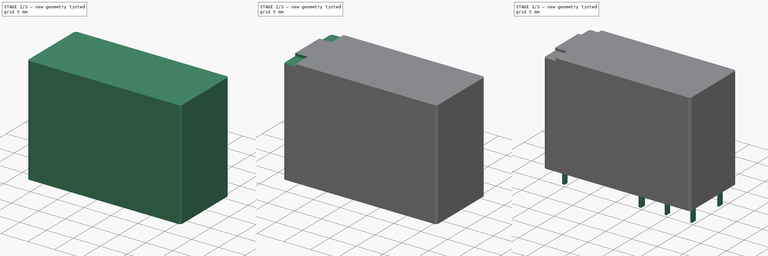
[diagram: build sequence overview — one tinted view per stage of 3, left to right]
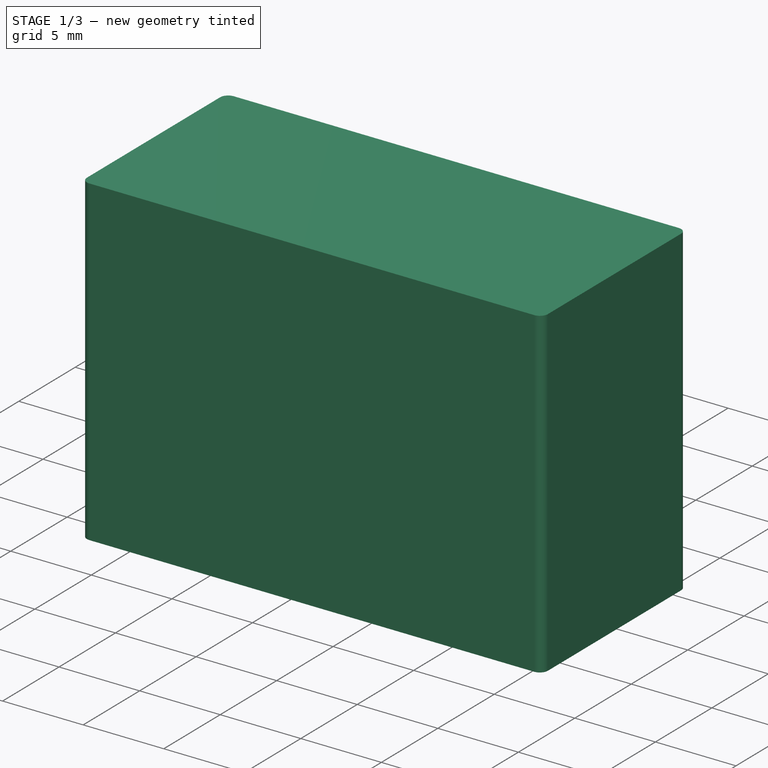
[diagram: stage 1 of 3 — iso view after this stage's code; geometry added in this stage tinted green]
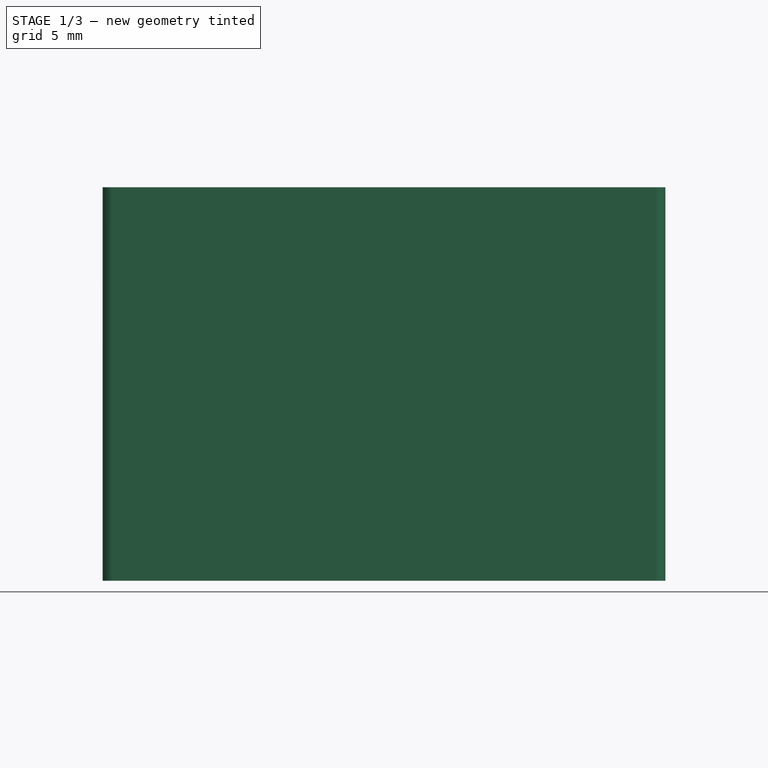
[diagram: stage 1 of 3 — front view after this stage's code; geometry added in this stage tinted green]
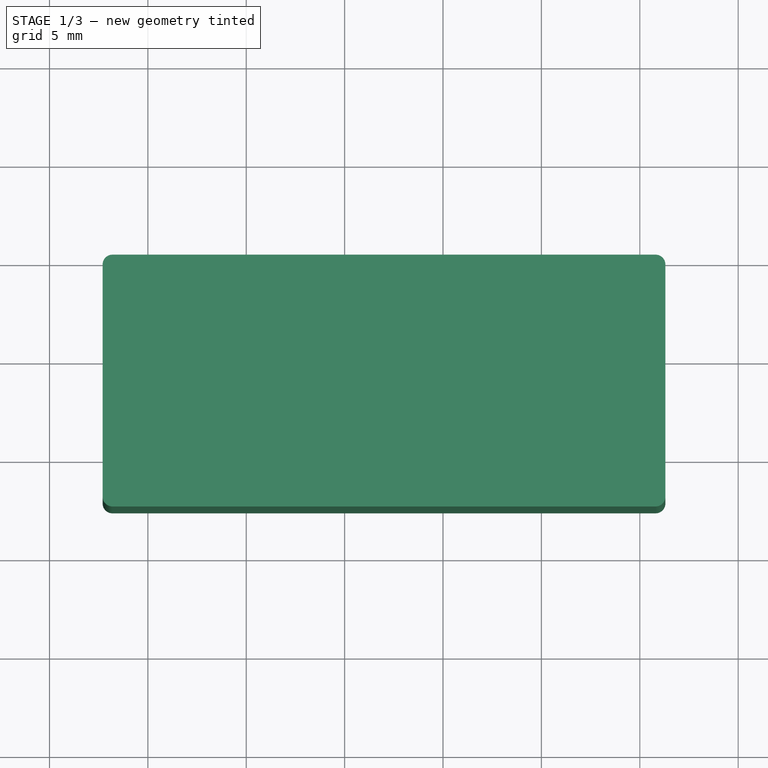
[diagram: stage 1 of 3 — top view after this stage's code; geometry added in this stage tinted green]
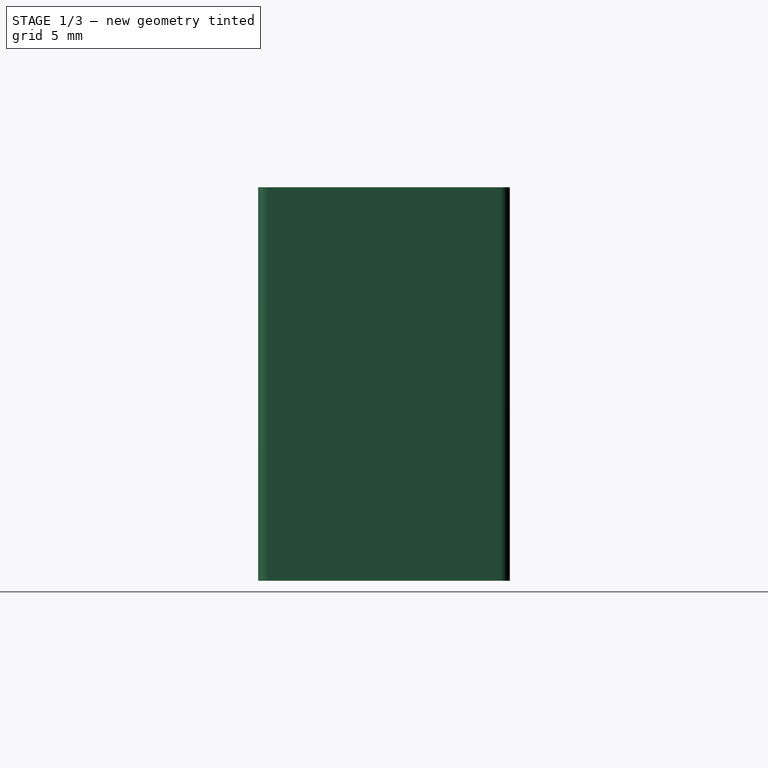
[diagram: stage 1 of 3 — right view after this stage's code; geometry added in this stage tinted green]
FCSTD DOCUMENT  (FreeCAD 0.16R6712 (Git))
Label: Relay_DPDT_Panasonic_JW2
License: All rights reserved
LicenseURL: http://en.wikipedia.org/wiki/All_rights_reserved
objects: Sketcher::SketchObject×3, Part::Feature×3, PartDesign::Pad×2, App::DocumentObjectGroup×1, PartDesign::Fillet×1, PartDesign::Pocket×1, Part::MultiFuse×1
note: 14 computed .brp shape members not serialized (recipe doc carries the construction recipe); baked Part::Feature solids carry a one-line shape summary decoded from their .brp

FEATURE [Part::Feature] FusionAxisZ1  label="Z"
  shape: bbox 0.8 x 0.8 x 14 mm, 8 faces (baked)
FEATURE [Part::Feature] FusionAxisY1  label="Y"
  Placement = pos=(0,0,0.05) rot=(-1,0,0;1.5708rad)
  shape: bbox 0.8 x 14 x 0.8 mm, 8 faces (baked)
FEATURE [Part::Feature] FusionAxisX1  label="X"
  Placement = pos=(0,-0.05,0) rot=(0,1,0;1.5708rad)
  shape: bbox 14 x 0.8 x 0.8 mm, 8 faces (baked)
FEATURE [App::DocumentObjectGroup] axis
  Group = -> [FusionAxisZ1,FusionAxisY1,FusionAxisX1]
FEATURE [Sketcher::SketchObject] Sketch001
  expr: Constraints[11] = 28.6 - 25 - 1.3
  expr: Constraints[8] = (12.7 - 7.5) / 2
  sketch-geometry (4):
    g0: LineSegment StartX=-2.3 StartY=-2.6 StartZ=0 EndX=26.3 EndY=-2.6 EndZ=0
    g1: LineSegment StartX=26.3 StartY=-2.6 StartZ=0 EndX=26.3 EndY=10.2 EndZ=0
    g2: LineSegment StartX=26.3 StartY=10.2 StartZ=0 EndX=-2.3 EndY=10.2 EndZ=0
    g3: LineSegment StartX=-2.3 StartY=10.2 StartZ=0 EndX=-2.3 EndY=-2.6 EndZ=0
  constraints (12):
    c: Coincident(g0,g1)
    c: Coincident(g1,g2)
    c: Coincident(g2,g3)
    c: Coincident(g3,g0)
    c: Horizontal(g0)
    c: Horizontal(g2)
    c: Vertical(g1)
    c: Vertical(g3)
    c: DistanceY(g0,g-1) = 2.6
    c: DistanceY(g3,g3) = 12.8
    c: DistanceX(g2,g2) = 28.6
    c: DistanceX(g0,g-1) = 2.3
FEATURE [PartDesign::Pad] Pad001
  Length = 20
  Length2 = 100
  Sketch = -> Sketch001
  Type = 0
FEATURE [PartDesign::Fillet] Fillet
  Base = -> Pad001 [Edge5,Edge2,Edge1,Edge8]
  Radius = 0.5
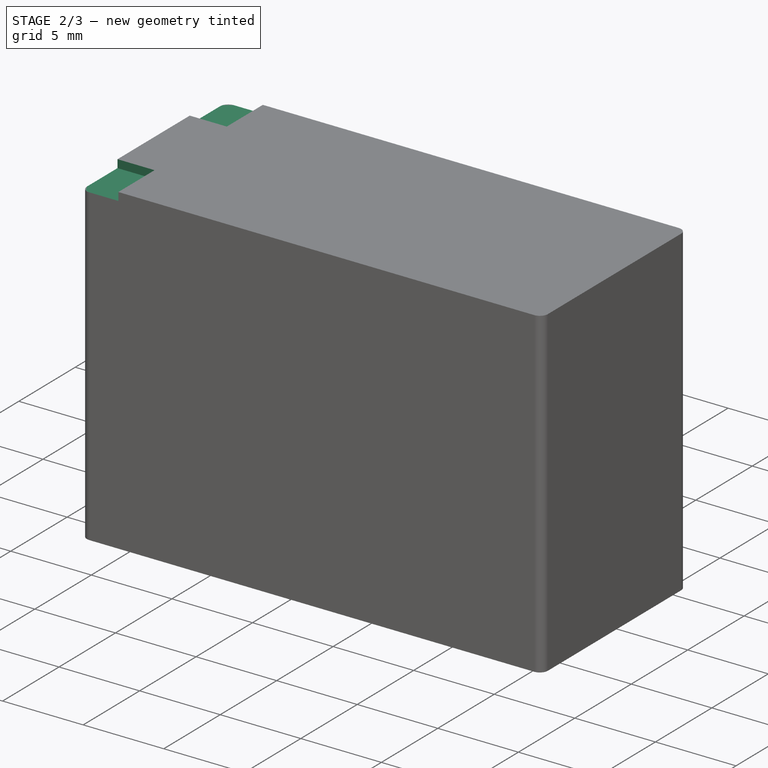
[diagram: stage 2 of 3 — iso view after this stage's code; geometry added in this stage tinted green]
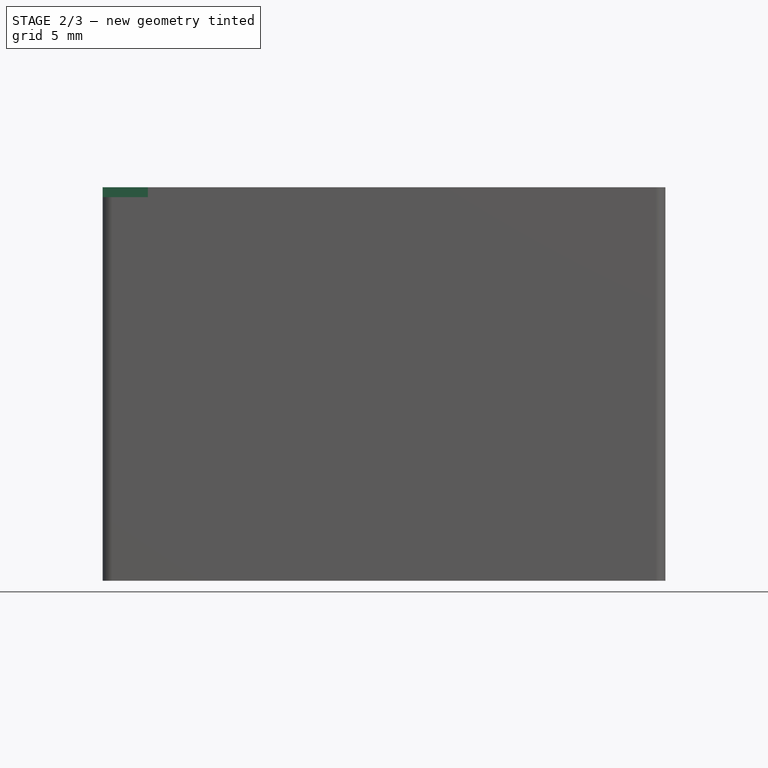
[diagram: stage 2 of 3 — front view after this stage's code; geometry added in this stage tinted green]
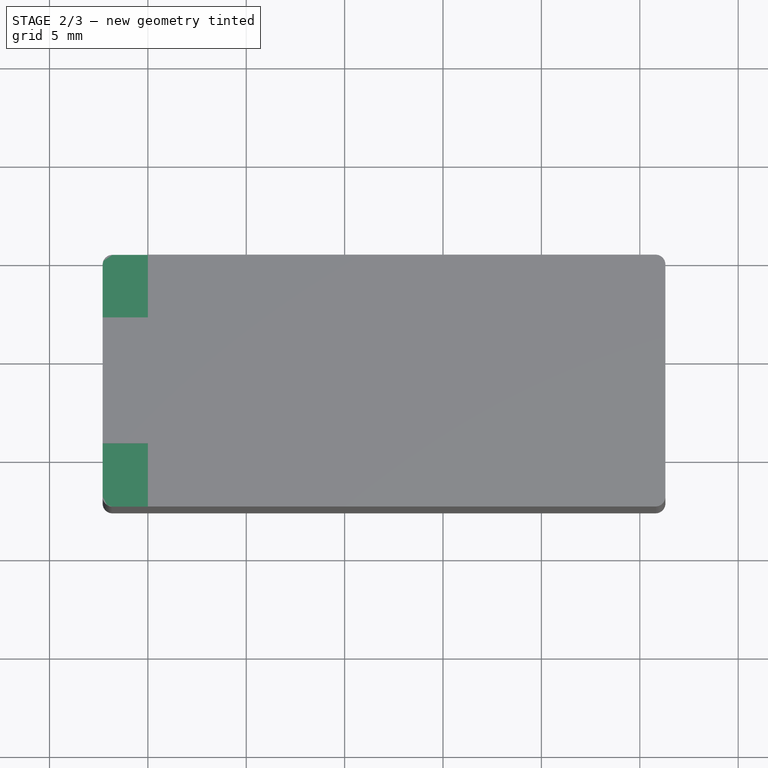
[diagram: stage 2 of 3 — top view after this stage's code; geometry added in this stage tinted green]
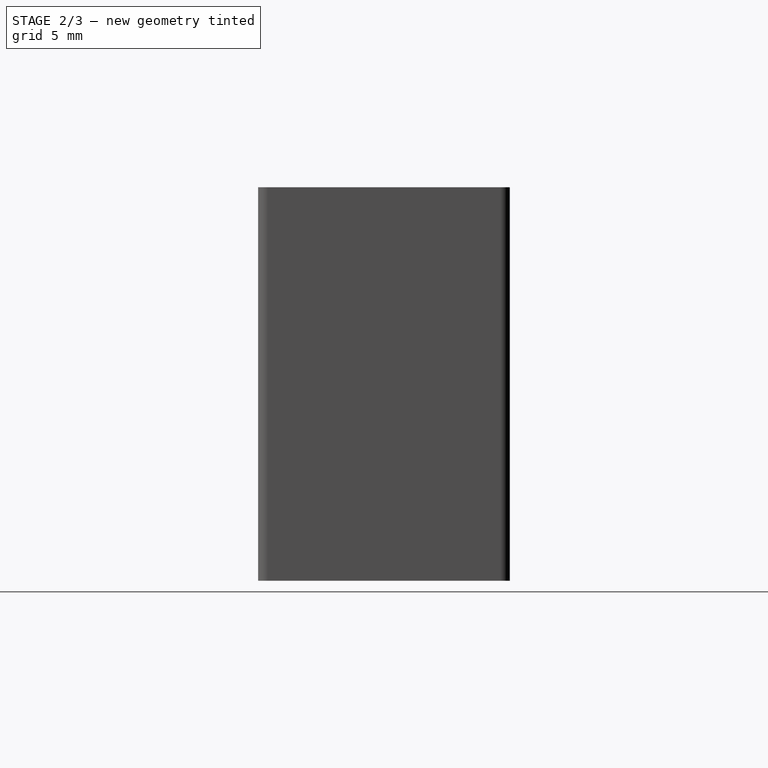
[diagram: stage 2 of 3 — right view after this stage's code; geometry added in this stage tinted green]
FEATURE [Sketcher::SketchObject] Sketch002
  ExternalGeometry = -> [Fillet]
  Placement = pos=(0,0,20) rot=(0,0,1;0rad)
  Support = -> Fillet [Face5]
  expr: Constraints[21] = 12.8 / 2
  sketch-geometry (8):
    g0: LineSegment StartX=-2.4 StartY=10.22 StartZ=0 EndX=0 EndY=10.22 EndZ=0
    g1: LineSegment StartX=0 StartY=10.22 StartZ=0 EndX=0 EndY=7.01 EndZ=0
    g2: LineSegment StartX=0 StartY=7.01 StartZ=0 EndX=-2.4 EndY=7.01 EndZ=0
    g3: LineSegment StartX=-2.4 StartY=7.01 StartZ=0 EndX=-2.4 EndY=10.22 EndZ=0
    g4: LineSegment StartX=-2.4 StartY=-2.6 StartZ=0 EndX=0 EndY=-2.6 EndZ=0
    g5: LineSegment StartX=0 StartY=-2.6 StartZ=0 EndX=0 EndY=0.61 EndZ=0
    g6: LineSegment StartX=0 StartY=0.61 StartZ=0 EndX=-2.4 EndY=0.61 EndZ=0
    g7: LineSegment StartX=-2.4 StartY=0.61 StartZ=0 EndX=-2.4 EndY=-2.6 EndZ=0
  constraints (24):
    c: Coincident(g0,g1)
    c: Coincident(g1,g2)
    c: Coincident(g2,g3)
    c: Coincident(g3,g0)
    c: Horizontal(g0)
    c: Horizontal(g2)
    c: Vertical(g1)
    c: Vertical(g3)
    c: PointOnObject(g1,g-2)
    c: Coincident(g4,g5)
    c: Coincident(g5,g6)
    c: Coincident(g6,g7)
    c: Coincident(g7,g4)
    c: Horizontal(g4)
    c: Horizontal(g6)
    c: Vertical(g5)
    c: Vertical(g7)
    c: PointOnObject(g5,g-2)
    c: Equal(g7,g3)
    c: Equal(g0,g6)
    c: DistanceY(g4,g0) = 12.82
    c: DistanceY(g6,g2) = 6.4
    c: DistanceX(g4,g4) = 2.4
    c: PointOnObject(g4,g-3)
FEATURE [PartDesign::Pocket] Pocket
  Length = 0.5
  Sketch = -> Sketch002
  Type = 0
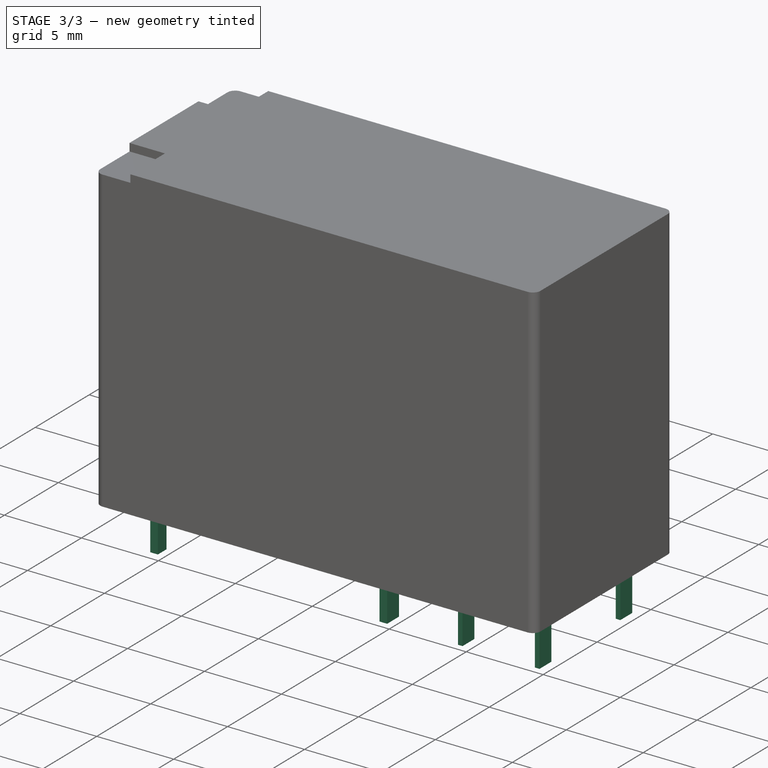
[diagram: stage 3 of 3 — iso view after this stage's code; geometry added in this stage tinted green]
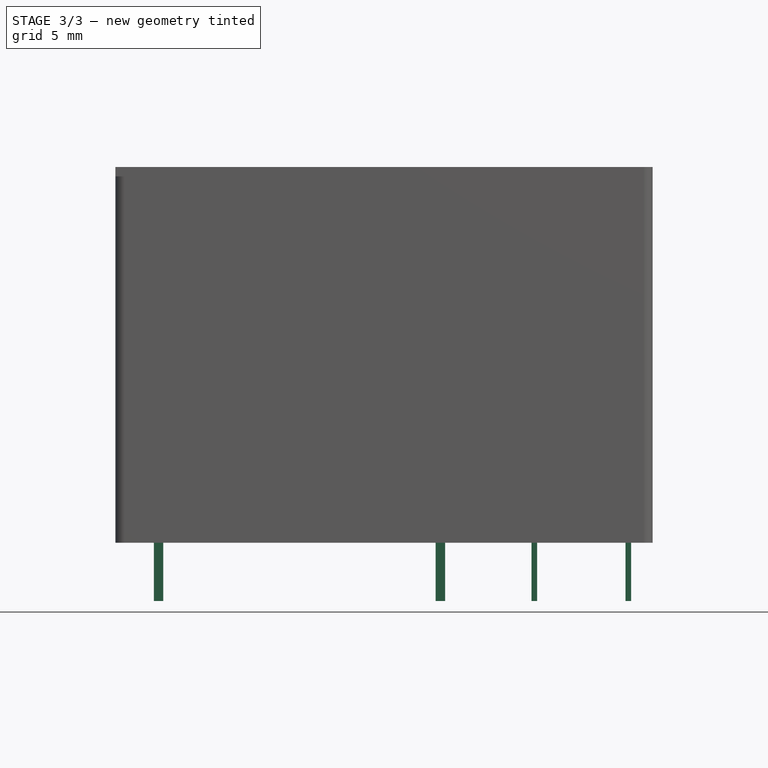
[diagram: stage 3 of 3 — front view after this stage's code; geometry added in this stage tinted green]
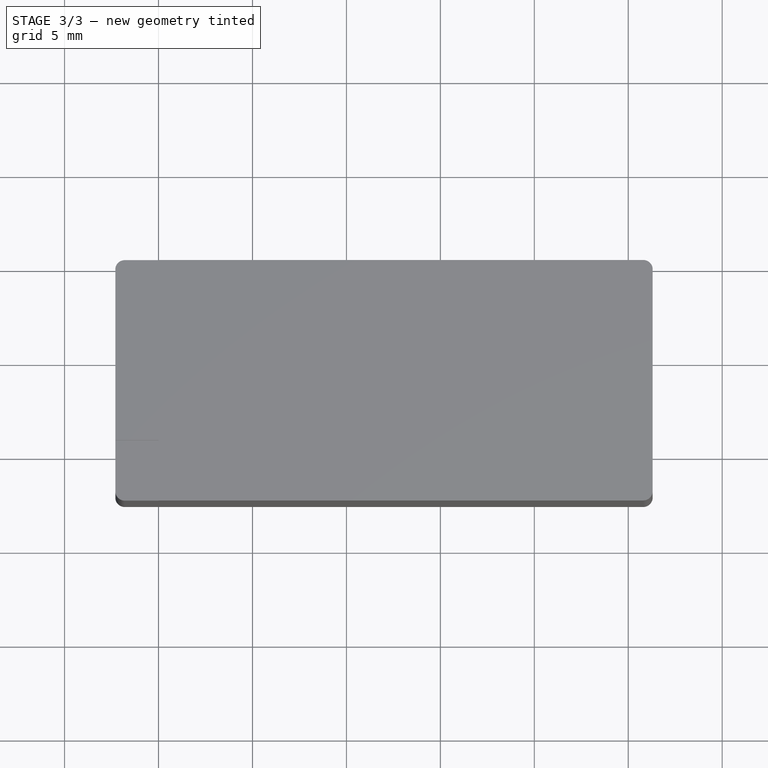
[diagram: stage 3 of 3 — top view after this stage's code; geometry added in this stage tinted green]
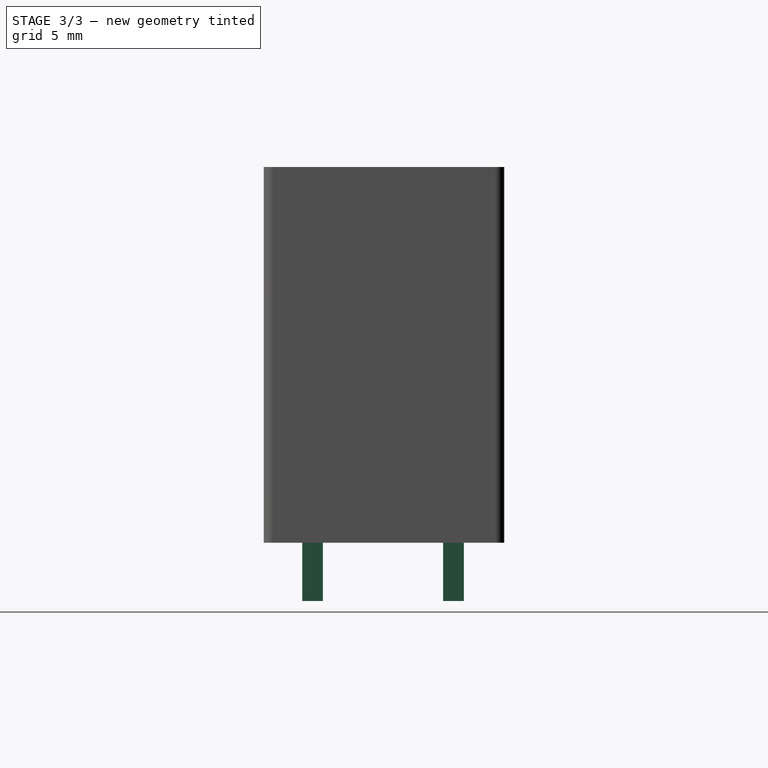
[diagram: stage 3 of 3 — right view after this stage's code; geometry added in this stage tinted green]
FEATURE [Sketcher::SketchObject] Sketch
  Placement = pos=(0,0,0.5) rot=(0,0,1;1.5708rad)
  sketch-geometry (42):
    g0: LineSegment StartX=-0.4 StartY=0.25 StartZ=0 EndX=0.4 EndY=0.25 EndZ=0
    g1: LineSegment StartX=0.4 StartY=0.25 StartZ=0 EndX=0.4 EndY=-0.25 EndZ=0
    g2: LineSegment StartX=0.4 StartY=-0.25 StartZ=0 EndX=-0.4 EndY=-0.25 EndZ=0
    g3: LineSegment StartX=-0.4 StartY=-0.25 StartZ=0 EndX=-0.4 EndY=0.25 EndZ=0
    g4: GeomPoint [constr] X=0 Y=0.25 Z=0
    g5: GeomPoint [constr] X=0.4 Y=0 Z=0
    g6: LineSegment StartX=7.1 StartY=0.25 StartZ=0 EndX=7.9 EndY=0.25 EndZ=0
    g7: LineSegment StartX=7.9 StartY=0.25 StartZ=0 EndX=7.9 EndY=-0.25 EndZ=0
    g8: LineSegment StartX=7.9 StartY=-0.25 StartZ=0 EndX=7.1 EndY=-0.25 EndZ=0
    g9: LineSegment StartX=7.1 StartY=-0.25 StartZ=0 EndX=7.1 EndY=0.25 EndZ=0
    g10: LineSegment StartX=-0.55 StartY=-14.75 StartZ=0 EndX=0.55 EndY=-14.75 EndZ=0
    g11: LineSegment StartX=0.55 StartY=-14.75 StartZ=0 EndX=0.55 EndY=-15.25 EndZ=0
    g12: LineSegment StartX=0.55 StartY=-15.25 StartZ=0 EndX=-0.55 EndY=-15.25 EndZ=0
    g13: LineSegment StartX=-0.55 StartY=-15.25 StartZ=0 EndX=-0.55 EndY=-14.75 EndZ=0
    g14: LineSegment StartX=-0.55 StartY=-19.85 StartZ=0 EndX=0.55 EndY=-19.85 EndZ=0
    g15: LineSegment StartX=0.55 StartY=-19.85 StartZ=0 EndX=0.55 EndY=-20.15 EndZ=0
    g16: LineSegment StartX=0.55 StartY=-20.15 StartZ=0 EndX=-0.55 EndY=-20.15 EndZ=0
    g17: LineSegment StartX=-0.55 StartY=-20.15 StartZ=0 EndX=-0.55 EndY=-19.85 EndZ=0
    g18: LineSegment [constr] StartX=-0.4 StartY=0 StartZ=0 EndX=7.1 EndY=0 EndZ=0
    g19: GeomPoint [constr] X=-0.55 Y=-15 Z=0
    g20: LineSegment StartX=6.95 StartY=-19.85 StartZ=0 EndX=8.05 EndY=-19.85 EndZ=0
    g21: LineSegment StartX=8.05 StartY=-19.85 StartZ=0 EndX=8.05 EndY=-20.15 EndZ=0
    g22: LineSegment StartX=8.05 StartY=-20.15 StartZ=0 EndX=6.95 EndY=-20.15 EndZ=0
    g23: LineSegment StartX=6.95 StartY=-20.15 StartZ=0 EndX=6.95 EndY=-19.85 EndZ=0
    g24: LineSegment [constr] StartX=-0.55 StartY=-15 StartZ=0 EndX=-0.55 EndY=-20 EndZ=0
    g25: LineSegment [constr] StartX=-0.55 StartY=-20 StartZ=0 EndX=6.95 EndY=-20 EndZ=0
    g26: LineSegment StartX=6.95 StartY=-14.75 StartZ=0 EndX=8.05 EndY=-14.75 EndZ=0
    g27: LineSegment StartX=8.05 StartY=-14.75 StartZ=0 EndX=8.05 EndY=-15.25 EndZ=0
    g28: LineSegment StartX=8.05 StartY=-15.25 StartZ=0 EndX=6.95 EndY=-15.25 EndZ=0
    g29: LineSegment StartX=6.95 StartY=-15.25 StartZ=0 EndX=6.95 EndY=-14.75 EndZ=0
    g30: LineSegment [constr] StartX=-0.55 StartY=-15 StartZ=0 EndX=6.95 EndY=-15 EndZ=0
    g31: LineSegment StartX=-0.55 StartY=-24.85 StartZ=0 EndX=0.55 EndY=-24.85 EndZ=0
    g32: LineSegment StartX=0.55 StartY=-24.85 StartZ=0 EndX=0.55 EndY=-25.15 EndZ=0
    g33: LineSegment StartX=0.55 StartY=-25.15 StartZ=0 EndX=-0.55 EndY=-25.15 EndZ=0
    g34: LineSegment StartX=-0.55 StartY=-25.15 StartZ=0 EndX=-0.55 EndY=-24.85 EndZ=0
    g35: LineSegment StartX=6.95 StartY=-24.85 StartZ=0 EndX=8.05 EndY=-24.85 EndZ=0
    g36: LineSegment StartX=8.05 StartY=-24.85 StartZ=0 EndX=8.05 EndY=-25.15 EndZ=0
    g37: LineSegment StartX=8.05 StartY=-25.15 StartZ=0 EndX=6.95 EndY=-25.15 EndZ=0
    g38: LineSegment StartX=6.95 StartY=-25.15 StartZ=0 EndX=6.95 EndY=-24.85 EndZ=0
    g39: LineSegment [constr] StartX=-0.55 StartY=-25 StartZ=0 EndX=6.95 EndY=-25 EndZ=0
    g40: LineSegment [constr] StartX=-0.55 StartY=-25 StartZ=0 EndX=-0.55 EndY=-20 EndZ=0
    g41: LineSegment [constr] StartX=0 StartY=0.25 StartZ=0 EndX=0 EndY=-14.75 EndZ=0
  constraints (117):
    c: Coincident(g0,g1)
    c: Coincident(g1,g2)
    c: Coincident(g2,g3)
    c: Coincident(g3,g0)
    c: Horizontal(g0)
    c: Horizontal(g2)
    c: Vertical(g1)
    c: Vertical(g3)
    c: PointOnObject(g4,g0)
    c: PointOnObject(g5,g-1)
    c: Symmetric(g1,g1,g5)
    c: Symmetric(g0,g0,g4)
    c: PointOnObject(g4,g-2)
    c: DistanceY(g3,g3) = 0.5
    c: DistanceX(g0,g0) = 0.8
    c: Coincident(g6,g7)
    c: Coincident(g7,g8)
    c: Coincident(g8,g9)
    c: Coincident(g9,g6)
    c: Horizontal(g6)
    c: Horizontal(g8)
    c: Vertical(g7)
    c: Vertical(g9)
    c: Coincident(g10,g11)
    c: Coincident(g11,g12)
    c: Coincident(g12,g13)
    c: Coincident(g13,g10)
    c: Horizontal(g10)
    c: Horizontal(g12)
    c: Vertical(g11)
    c: Vertical(g13)
    c: Coincident(g14,g15)
    c: Coincident(g15,g16)
    c: Coincident(g16,g17)
    c: Coincident(g17,g14)
    c: Horizontal(g14)
    c: Horizontal(g16)
    c: Vertical(g15)
    c: Vertical(g17)
    c: PointOnObject(g18,g3)
    c: Horizontal(g18)
    c: Symmetric(g9,g9,g18)
    c: DistanceX(g18,g18) = 7.5
    c: Equal(g6,g0)
    c: Symmetric(g13,g13,g19)
    c: Coincident(g20,g21)
    c: Coincident(g21,g22)
    c: Coincident(g22,g23)
    c: Coincident(g23,g20)
    c: Horizontal(g20)
    c: Horizontal(g22)
    c: Vertical(g21)
    c: Vertical(g23)
    c: DistanceY(g11,g11) = 0.5
    c: Vertical(g24)
    c: Symmetric(g17,g17,g24)
    c: DistanceY(g24,g24) = 5
    c: DistanceY(g19,g18) = 15
    c: Horizontal(g25)
    c: Coincident(g24,g25)
    c: DistanceX(g25,g25) = 7.5
    c: Symmetric(g23,g23,g25)
    c: Equal(g7,g1)
    c: Coincident(g26,g27)
    c: Coincident(g27,g28)
    c: Coincident(g28,g29)
    c: Coincident(g29,g26)
    c: Horizontal(g26)
    c: Horizontal(g28)
    c: Vertical(g27)
    c: Vertical(g29)
    c: Horizontal(g30)
    c: Equal(g25,g30) = 7.62
    c: Symmetric(g29,g29,g30)
    c: Coincident(g31,g32)
    c: Coincident(g32,g33)
    c: Coincident(g33,g34)
    c: Coincident(g34,g31)
    c: Horizontal(g31)
    c: Horizontal(g33)
    c: Vertical(g32)
    c: Vertical(g34)
    c: Coincident(g35,g36)
    c: Coincident(g36,g37)
    c: Coincident(g37,g38)
    c: Coincident(g38,g35)
    c: Horizontal(g35)
    c: Horizontal(g37)
    c: Vertical(g36)
    c: Vertical(g38)
    c: Horizontal(g39)
    c: Equal(g25,g39) = 7.62
    c: Symmetric(g38,g38,g39)
    c: Coincident(g40,g39)
    c: Coincident(g40,g24)
    c: Vertical(g40)
    c: DistanceY(g40,g40) = 5
    c: PointOnObject(g39,g34)
    c: Symmetric(g34,g34,g39)
    c: Equal(g15,g21)
    c: Equal(g21,g36)
    c: Equal(g36,g32)
    c: DistanceY(g23,g23) = 0.3
    c: Equal(g11,g27)
    c: Equal(g12,g28)
    c: Equal(g28,g16)
    c: Equal(g16,g22)
    c: Equal(g22,g37)
    c: Equal(g37,g33)
    c: DistanceX(g33,g33) = 1.1
    c: Coincident(g41,g4)
    c: PointOnObject(g41,g10)
    c: Vertical(g41)
    c: Symmetric(g10,g10,g41)
    c: Coincident(g24,g19)
    c: Coincident(g30,g19)
    c: PointOnObject(g18,g-1)
FEATURE [PartDesign::Pad] Pad
  Length = 3.6
  Length2 = 100
  Placement = pos=(0,0,0.5) rot=(0,0,1;1.5708rad)
  Reversed = true
  Sketch = -> Sketch
  Type = 0
FEATURE [Part::MultiFuse] Pad_mp_cp  label="Relay_DPDT_Panasonic_JW2"
  Shapes = -> [Pad,Pocket]
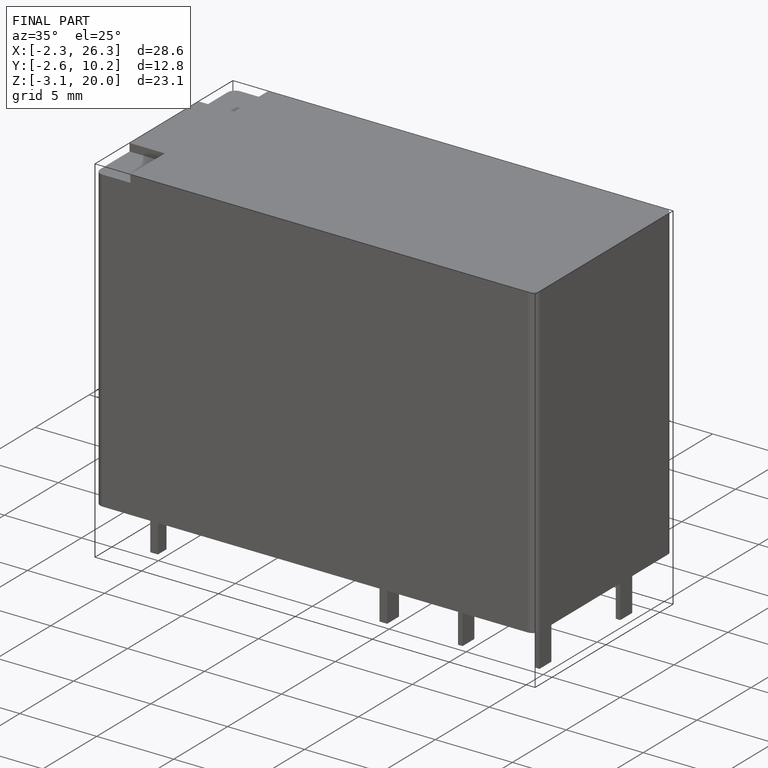
[diagram: finished part — iso view with bounding-box wireframe]
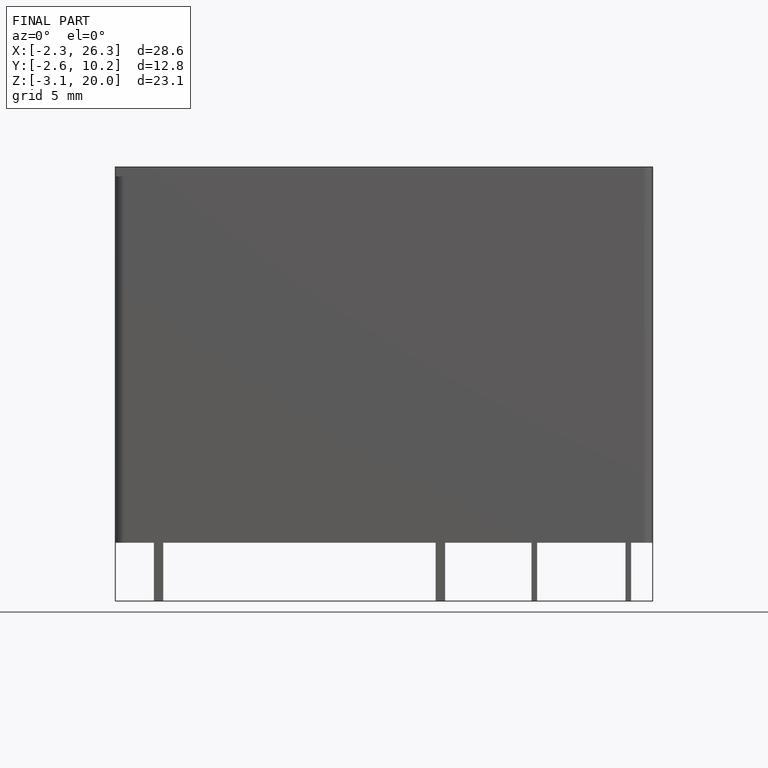
[diagram: finished part — front view with bounding-box wireframe]
